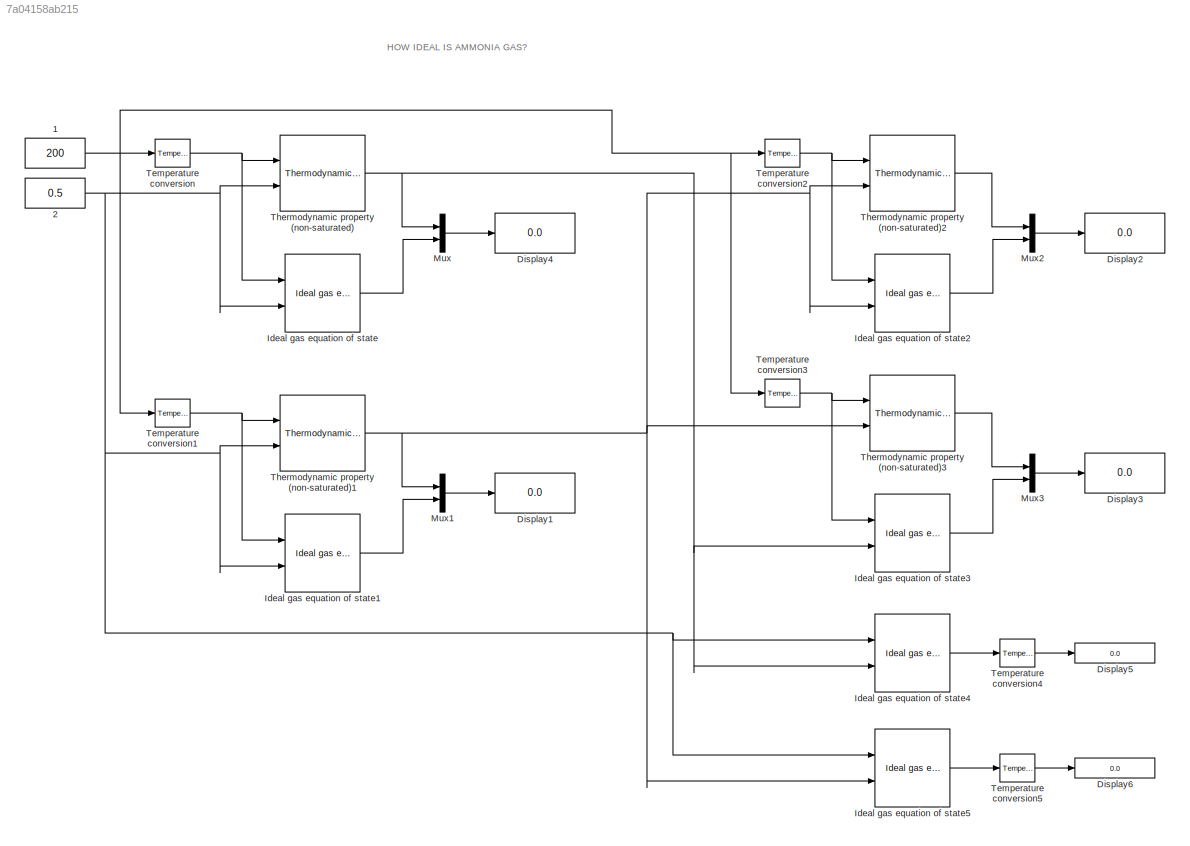
MODEL slx_7a04158ab215
KIND model
CONFIG AbsTol = auto
CONFIG EnableMultiTasking = off
CONFIG FixedStep = auto
CONFIG MaxStep = auto
CONFIG MinStep = auto
CONFIG RelTol = 1e-3
CONFIG SampleTimeConstraint = Unconstrained
CONFIG Solver = VariableStepAuto
CONFIG SolverName = VariableStepAuto
CONFIG StartTime = 0.0
CONFIG StopTime = 0
BLOCK [Constant] 1
  Value = 200
BLOCK [Constant] 2
  Value = 0.5
BLOCK [Display] Display1
  Decimation = 1
  Ports = [1]
BLOCK [Display] Display2
  Decimation = 1
  Ports = [1]
BLOCK [Display] Display3
  Decimation = 1
  Ports = [1]
BLOCK [Display] Display4
  Decimation = 1
  Ports = [1]
BLOCK [Display] Display5
  Decimation = 1
  Ports = [1]
BLOCK [Display] Display6
  Decimation = 1
  Ports = [1]
BLOCK [Reference] Ideal gas equation of state  REF=thermochemical/Thermodynamic fluid properties/Ideal gas  (lib defined in slx_f9e0643dc704)
equation of state
  Ports = [2, 1]
  SourceBlock = thermochemical/Thermodynamic fluid properties/Ideal gas\nequation of state
  SourceProductName = @ Thermochemical
  SourceType = ideal_gas_equation_of_state
BLOCK [Reference] Ideal gas equation of state1  REF=thermochemical/Thermodynamic fluid properties/Ideal gas  (lib defined in slx_f9e0643dc704)
equation of state
  Ports = [2, 1]
  SourceBlock = thermochemical/Thermodynamic fluid properties/Ideal gas\nequation of state
  SourceProductName = @ Thermochemical
  SourceType = ideal_gas_equation_of_state
BLOCK [Reference] Ideal gas equation of state2  REF=thermochemical/Thermodynamic fluid properties/Ideal gas  (lib defined in slx_f9e0643dc704)
equation of state
  Ports = [2, 1]
  SourceBlock = thermochemical/Thermodynamic fluid properties/Ideal gas\nequation of state
  SourceProductName = @ Thermochemical
  SourceType = ideal_gas_equation_of_state
BLOCK [Reference] Ideal gas equation of state3  REF=thermochemical/Thermodynamic fluid properties/Ideal gas  (lib defined in slx_f9e0643dc704)
equation of state
  Ports = [2, 1]
  SourceBlock = thermochemical/Thermodynamic fluid properties/Ideal gas\nequation of state
  SourceProductName = @ Thermochemical
  SourceType = ideal_gas_equation_of_state
BLOCK [Reference] Ideal gas equation of state4  REF=thermochemical/Thermodynamic fluid properties/Ideal gas  (lib defined in slx_f9e0643dc704)
equation of state
  Ports = [2, 1]
  SourceBlock = thermochemical/Thermodynamic fluid properties/Ideal gas\nequation of state
  SourceProductName = @ Thermochemical
  SourceType = ideal_gas_equation_of_state
BLOCK [Reference] Ideal gas equation of state5  REF=thermochemical/Thermodynamic fluid properties/Ideal gas  (lib defined in slx_f9e0643dc704)
equation of state
  Ports = [2, 1]
  SourceBlock = thermochemical/Thermodynamic fluid properties/Ideal gas\nequation of state
  SourceProductName = @ Thermochemical
  SourceType = ideal_gas_equation_of_state
BLOCK [Mux] Mux
  DisplayOption = bar
  Inputs = 2
  Ports = [2, 1]
BLOCK [Mux] Mux1
  DisplayOption = bar
  Inputs = 2
  Ports = [2, 1]
BLOCK [Mux] Mux2
  DisplayOption = bar
  Inputs = 2
  Ports = [2, 1]
BLOCK [Mux] Mux3
  DisplayOption = bar
  Inputs = 2
  Ports = [2, 1]
BLOCK [Reference] Temperature conversion  REF=thermochemical/Conversions/Temperature  (lib defined in slx_f9e0643dc704)
conversion
  Ports = [1, 1]
  SourceBlock = thermochemical/Conversions/Temperature\nconversion
  SourceProductName = @ Thermochemical
  SourceType = convert_temperature
BLOCK [Reference] Temperature conversion1  REF=thermochemical/Conversions/Temperature  (lib defined in slx_f9e0643dc704)
conversion
  Ports = [1, 1]
  SourceBlock = thermochemical/Conversions/Temperature\nconversion
  SourceProductName = @ Thermochemical
  SourceType = convert_temperature
BLOCK [Reference] Temperature conversion2  REF=thermochemical/Conversions/Temperature  (lib defined in slx_f9e0643dc704)
conversion
  Ports = [1, 1]
  SourceBlock = thermochemical/Conversions/Temperature\nconversion
  SourceProductName = @ Thermochemical
  SourceType = convert_temperature
BLOCK [Reference] Temperature conversion3  REF=thermochemical/Conversions/Temperature  (lib defined in slx_f9e0643dc704)
conversion
  Ports = [1, 1]
  SourceBlock = thermochemical/Conversions/Temperature\nconversion
  SourceProductName = @ Thermochemical
  SourceType = convert_temperature
BLOCK [Reference] Temperature conversion4  REF=thermochemical/Conversions/Temperature  (lib defined in slx_f9e0643dc704)
conversion
  Ports = [1, 1]
  SourceBlock = thermochemical/Conversions/Temperature\nconversion
  SourceProductName = @ Thermochemical
  SourceType = convert_temperature
BLOCK [Reference] Temperature conversion5  REF=thermochemical/Conversions/Temperature  (lib defined in slx_f9e0643dc704)
conversion
  Ports = [1, 1]
  SourceBlock = thermochemical/Conversions/Temperature\nconversion
  SourceProductName = @ Thermochemical
  SourceType = convert_temperature
BLOCK [Reference] Thermodynamic property (non-saturated)  REF=thermochemical/Thermodynamic fluid properties/Thermodynamic   (lib defined in slx_f9e0643dc704)
property (non-saturated)
  Ports = [2, 1]
  SourceBlock = thermochemical/Thermodynamic fluid properties/Thermodynamic \nproperty (non-saturated)
  SourceProductName = @ Thermochemical
  SourceType = thermodynamic_properties_nonsaturated
BLOCK [Reference] Thermodynamic property (non-saturated)1  REF=thermochemical/Thermodynamic fluid properties/Thermodynamic   (lib defined in slx_f9e0643dc704)
property (non-saturated)
  Ports = [2, 1]
  SourceBlock = thermochemical/Thermodynamic fluid properties/Thermodynamic \nproperty (non-saturated)
  SourceProductName = @ Thermochemical
  SourceType = thermodynamic_properties_nonsaturated
BLOCK [Reference] Thermodynamic property (non-saturated)2  REF=thermochemical/Thermodynamic fluid properties/Thermodynamic   (lib defined in slx_f9e0643dc704)
property (non-saturated)
  Ports = [2, 1]
  SourceBlock = thermochemical/Thermodynamic fluid properties/Thermodynamic \nproperty (non-saturated)
  SourceProductName = @ Thermochemical
  SourceType = thermodynamic_properties_nonsaturated
BLOCK [Reference] Thermodynamic property (non-saturated)3  REF=thermochemical/Thermodynamic fluid properties/Thermodynamic   (lib defined in slx_f9e0643dc704)
property (non-saturated)
  Ports = [2, 1]
  SourceBlock = thermochemical/Thermodynamic fluid properties/Thermodynamic \nproperty (non-saturated)
  SourceProductName = @ Thermochemical
  SourceType = thermodynamic_properties_nonsaturated
ANNOTATION (root): HOW IDEAL IS AMMONIA GAS?
NET 1:1 -> Temperature conversion1:1, Temperature conversion2:1, Temperature conversion3:1, Temperature conversion:1
NET 2:1 -> Ideal gas equation of state1:2, Ideal gas equation of state4:1, Ideal gas equation of state5:1, Ideal gas equation of state:2, Thermodynamic property (non-saturated)1:2, Thermodynamic property (non-saturated):2
LINE Ideal gas equation of state1:1 -> Mux1:2
LINE Ideal gas equation of state2:1 -> Mux2:2
LINE Ideal gas equation of state3:1 -> Mux3:2
LINE Ideal gas equation of state4:1 -> Temperature conversion4:1
LINE Ideal gas equation of state5:1 -> Temperature conversion5:1
LINE Ideal gas equation of state:1 -> Mux:2
LINE Mux1:1 -> Display1:1
LINE Mux2:1 -> Display2:1
LINE Mux3:1 -> Display3:1
LINE Mux:1 -> Display4:1
NET Temperature conversion1:1 -> Ideal gas equation of state1:1, Thermodynamic property (non-saturated)1:1
NET Temperature conversion2:1 -> Ideal gas equation of state2:1, Thermodynamic property (non-saturated)2:1
NET Temperature conversion3:1 -> Ideal gas equation of state3:1, Thermodynamic property (non-saturated)3:1
LINE Temperature conversion4:1 -> Display5:1
LINE Temperature conversion5:1 -> Display6:1
NET Temperature conversion:1 -> Ideal gas equation of state:1, Thermodynamic property (non-saturated):1
NET Thermodynamic property (non-saturated)1:1 -> Ideal gas equation of state2:2, Ideal gas equation of state5:2, Mux1:1, Thermodynamic property (non-saturated)2:2, Thermodynamic property (non-saturated)3:2
LINE Thermodynamic property (non-saturated)2:1 -> Mux2:1
LINE Thermodynamic property (non-saturated)3:1 -> Mux3:1
NET Thermodynamic property (non-saturated):1 -> Ideal gas equation of state3:2, Ideal gas equation of state4:2, Mux:1
note: NET lines group one-source signal fan-out (src -> all destinations, sorted); 1:1 wires keep LINE
